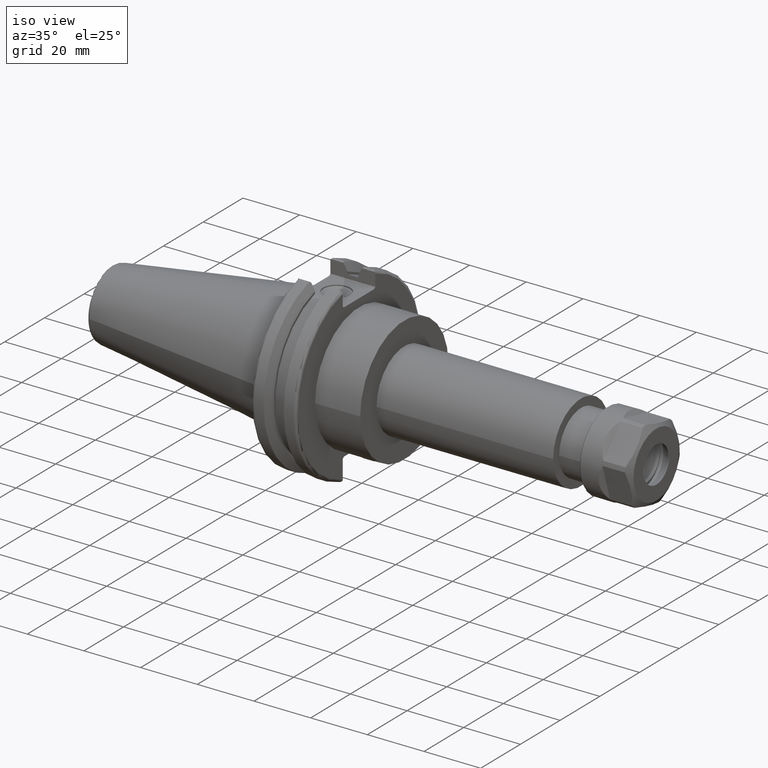
[diagram: clean part render]
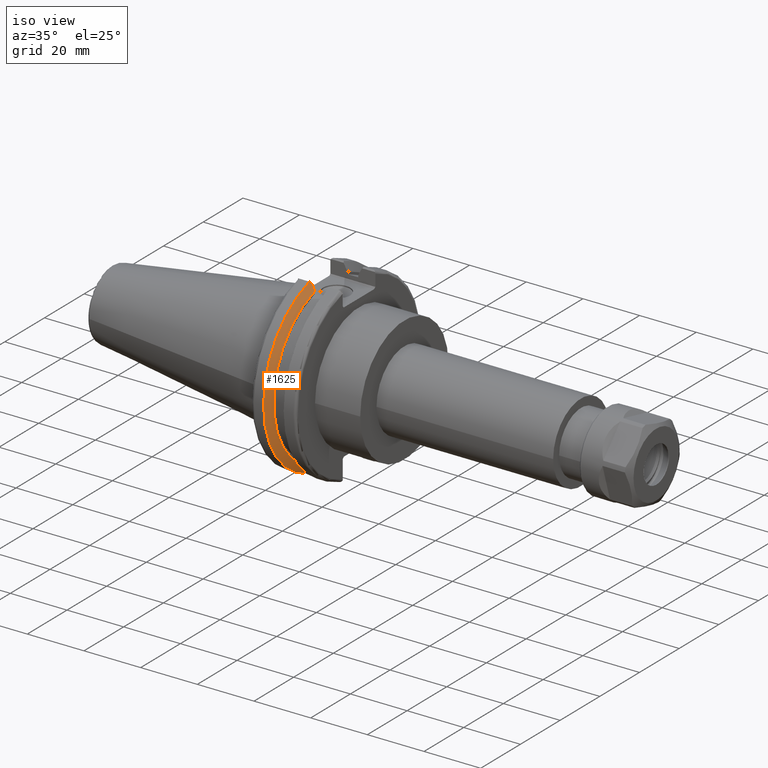
[diagram: same view with one face highlighted and labeled with its STEP entity id]
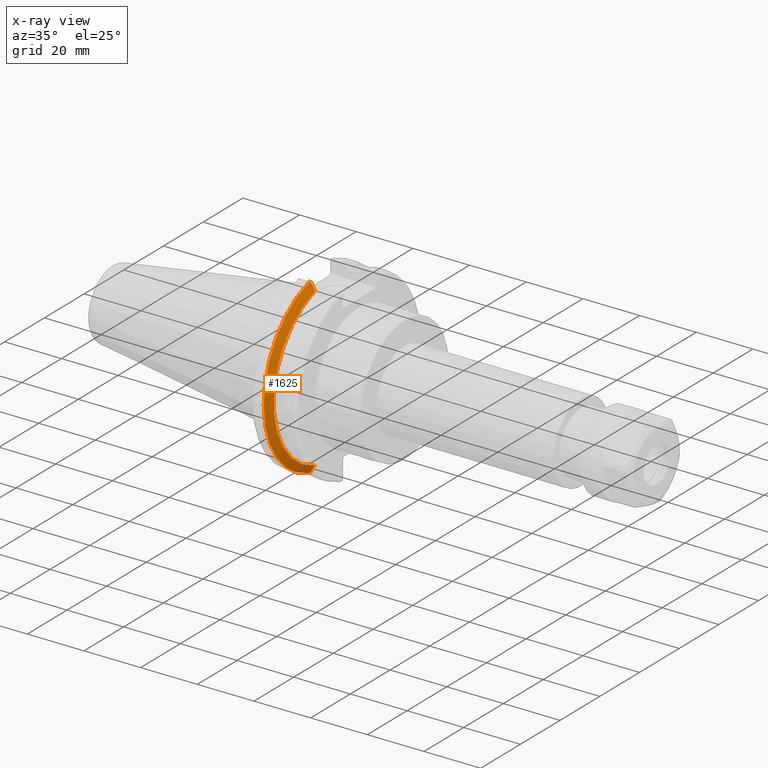
[diagram: x-ray of the same camera — body ghosted, the highlighted face saturated]
A machine part, iso view. The second image highlights one B-rep face of the part: STEP entity #1625.
The next image is the same camera in x-ray: the body ghosted, the highlighted face saturated — about 0% of this face is hidden behind the body in this view.
In plain terms, the highlighted conical surface has half-angle 60 deg.
Its self-contained STEP definition (entity closure, byte-faithful):
#75=(
BOUNDED_CURVE()
B_SPLINE_CURVE(2,(#2636,#2637,#2638),.UNSPECIFIED.,.F.,.F.)
B_SPLINE_CURVE_WITH_KNOTS((3,3),(0.,0.276549142796606),.UNSPECIFIED.)
CURVE()
GEOMETRIC_REPRESENTATION_ITEM()
RATIONAL_B_SPLINE_CURVE((1.,1.00095203903674,1.00031614444931))
REPRESENTATION_ITEM('')
);
#78=(
BOUNDED_CURVE()
B_SPLINE_CURVE(2,(#2664,#2665,#2666),.UNSPECIFIED.,.F.,.F.)
B_SPLINE_CURVE_WITH_KNOTS((3,3),(0.0550586467396013,0.331607789535851),
 .UNSPECIFIED.)
CURVE()
GEOMETRIC_REPRESENTATION_ITEM()
RATIONAL_B_SPLINE_CURVE((1.00031614445107,1.00095203904202,1.))
REPRESENTATION_ITEM('')
);
#79=(
BOUNDED_CURVE()
B_SPLINE_CURVE(2,(#2699,#2700,#2701),.UNSPECIFIED.,.F.,.F.)
B_SPLINE_CURVE_WITH_KNOTS((3,3),(0.,0.0639048713675736),.UNSPECIFIED.)
CURVE()
GEOMETRIC_REPRESENTATION_ITEM()
RATIONAL_B_SPLINE_CURVE((1.,1.00028444218293,1.00047644010591))
REPRESENTATION_ITEM('')
);
#80=(
BOUNDED_CURVE()
B_SPLINE_CURVE(2,(#2707,#2708,#2709),.UNSPECIFIED.,.F.,.F.)
B_SPLINE_CURVE_WITH_KNOTS((3,3),(0.329353533631217,0.393258405001025),
 .UNSPECIFIED.)
CURVE()
GEOMETRIC_REPRESENTATION_ITEM()
RATIONAL_B_SPLINE_CURVE((1.00047644010584,1.0002844421829,1.))
REPRESENTATION_ITEM('')
);
#188=CONICAL_SURFACE('',#1836,30.3546886482472,1.0471975511966);
#245=FACE_OUTER_BOUND('',#347,.T.);
#347=EDGE_LOOP('',(#1336,#1337,#1338,#1339,#1340,#1341));
#646=CIRCLE('',#1798,31.75);
#661=CIRCLE('',#1837,28.9593772964944);
#758=VERTEX_POINT('',#2633);
#759=VERTEX_POINT('',#2635);
#768=VERTEX_POINT('',#2661);
#769=VERTEX_POINT('',#2663);
#773=VERTEX_POINT('',#2697);
#774=VERTEX_POINT('',#2703);
#929=EDGE_CURVE('',#759,#758,#75,.T.);
#940=EDGE_CURVE('',#769,#768,#78,.T.);
#948=EDGE_CURVE('',#773,#758,#79,.T.);
#950=EDGE_CURVE('',#773,#774,#646,.T.);
#951=EDGE_CURVE('',#769,#774,#80,.T.);
#994=EDGE_CURVE('',#759,#768,#661,.T.);
#1336=ORIENTED_EDGE('',*,*,#951,.F.);
#1337=ORIENTED_EDGE('',*,*,#940,.T.);
#1338=ORIENTED_EDGE('',*,*,#994,.F.);
#1339=ORIENTED_EDGE('',*,*,#929,.T.);
#1340=ORIENTED_EDGE('',*,*,#948,.F.);
#1341=ORIENTED_EDGE('',*,*,#950,.T.);
#1625=ADVANCED_FACE('',(#245),#188,.T.);
#1798=AXIS2_PLACEMENT_3D('',#2705,#2087,#2088);
#1836=AXIS2_PLACEMENT_3D('',#2829,#2181,#2182);
#1837=AXIS2_PLACEMENT_3D('',#2830,#2183,#2184);
#2087=DIRECTION('center_axis',(1.,0.,0.));
#2088=DIRECTION('ref_axis',(0.,0.,-1.));
#2181=DIRECTION('center_axis',(-1.,0.,0.));
#2182=DIRECTION('ref_axis',(0.,-1.,-1.22464679914735E-16));
#2183=DIRECTION('center_axis',(1.,0.,0.));
#2184=DIRECTION('ref_axis',(0.,0.,-1.));
#2633=CARTESIAN_POINT('',(7.87958530351256,-8.19,30.1755016258903));
#2635=CARTESIAN_POINT('',(9.212,-8.19,27.7771386827498));
#2636=CARTESIAN_POINT('Ctrl Pts',(9.212,-8.19,27.7771386827498));
#2637=CARTESIAN_POINT('Ctrl Pts',(8.57336356152746,-8.19,28.9303689539641));
#2638=CARTESIAN_POINT('Ctrl Pts',(7.87958530351256,-8.19,30.1755016258903));
#2661=CARTESIAN_POINT('',(9.212,-8.19,-27.7771386827498));
#2663=CARTESIAN_POINT('',(7.87958530351256,-8.19,-30.1755016258903));
#2664=CARTESIAN_POINT('Ctrl Pts',(7.87958530351256,-8.19,-30.1755016258903));
#2665=CARTESIAN_POINT('Ctrl Pts',(8.57336356151926,-8.19,-28.9303689539789));
#2666=CARTESIAN_POINT('Ctrl Pts',(9.212,-8.19,-27.7771386827498));
#2697=CARTESIAN_POINT('',(7.60083323092435,-8.67204822802685,30.5427254764662));
#2699=CARTESIAN_POINT('Ctrl Pts',(7.60083323092435,-8.67204822802686,30.5427254764662));
#2700=CARTESIAN_POINT('Ctrl Pts',(7.74189148121629,-8.42917748262642,30.3577067892629));
#2701=CARTESIAN_POINT('Ctrl Pts',(7.87958530351256,-8.19,30.1755016258903));
#2703=CARTESIAN_POINT('',(7.60083323092435,-8.67204822802685,-30.5427254764662));
#2705=CARTESIAN_POINT('Origin',(7.60083323092435,0.,0.));
#2707=CARTESIAN_POINT('Ctrl Pts',(7.87958530351256,-8.19,-30.1755016258903));
#2708=CARTESIAN_POINT('Ctrl Pts',(7.7418914812116,-8.42917748263464,-30.3577067892692));
#2709=CARTESIAN_POINT('Ctrl Pts',(7.60083323092435,-8.67204822802687,-30.5427254764662));
#2829=CARTESIAN_POINT('Origin',(8.40641661546218,0.,0.));
#2830=CARTESIAN_POINT('Origin',(9.212,0.,0.));